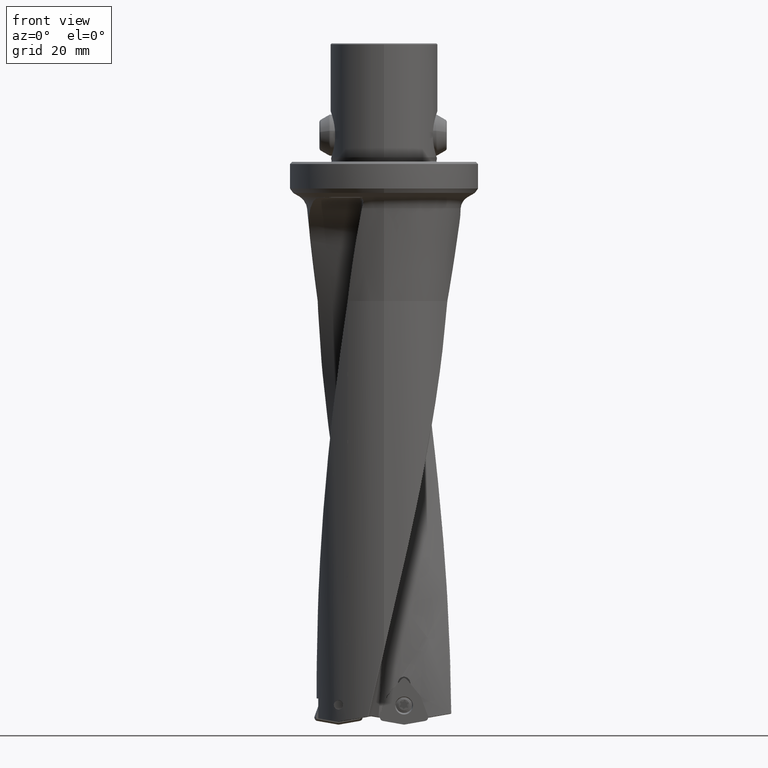
[diagram: clean part render]
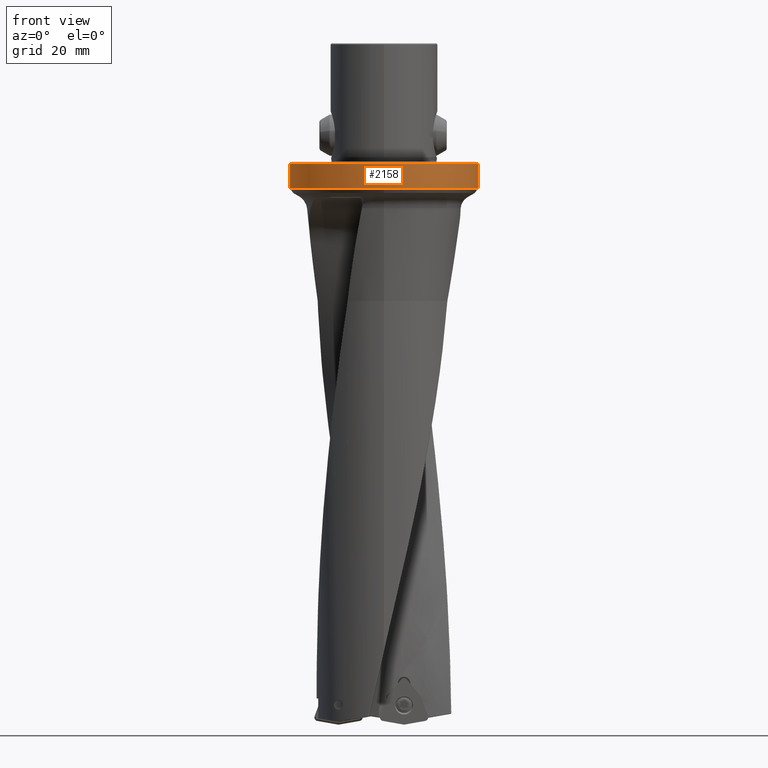
[diagram: same view with one face highlighted and labeled with its STEP entity id]
A machine part, front view. The second image highlights one B-rep face of the part: STEP entity #2158.
In plain terms, the highlighted cylindrical surface (partial cylindrical patch) has radius 31.75 mm, axis along (-0, -0, 1).
Its self-contained STEP definition (entity closure, byte-faithful):
#2158=ADVANCED_FACE('NONE',(#5861),#5862,.T.);
#2224=VERTEX_POINT('NONE',#5932);
#2272=VERTEX_POINT('NONE',#5984);
#2350=EDGE_CURVE('NONE',#5270,#2224,#6067,.T.);
#2898=EDGE_CURVE('NONE',#2224,#2272,#6681,.T.);
#3060=EDGE_CURVE('NONE',#4236,#2272,#6854,.T.);
#3288=EDGE_CURVE('NONE',#4340,#4236,#7118,.T.);
#4236=VERTEX_POINT('NONE',#8166);
#4268=EDGE_CURVE('NONE',#4340,#5270,#8199,.F.);
#4340=VERTEX_POINT('NONE',#8281);
#5270=VERTEX_POINT('NONE',#9308);
#5861=FACE_OUTER_BOUND('',#11666,.T.);
#5862=CYLINDRICAL_SURFACE('',#11667,31.75);
#5932=CARTESIAN_POINT('',(31.75,-7.56050156833742E-014,-8.99999999999998));
#5984=CARTESIAN_POINT('',(31.75,-7.17168905099881E-014,-0.749999999999964));
#6067=CIRCLE('',#12384,31.75);
#6681=LINE('',#19923,#19924);
#6854=CIRCLE('',#23533,31.75);
#7118=LINE('',#25395,#25396);
#8166=CARTESIAN_POINT('',(-31.75,7.56050156833742E-014,-0.749999999999964));
#8199=CIRCLE('',#35715,31.75);
#8281=CARTESIAN_POINT('',(-31.75,7.94931408567602E-014,-8.99999999999998));
#9308=CARTESIAN_POINT('',(-3.88812517338605E-015,-31.75,-8.99999999999998));
#11666=EDGE_LOOP('',(#46463,#46464,#46465,#46466,#46467));
#11667=AXIS2_PLACEMENT_3D('',#46468,#46469,#46470);
#12384=AXIS2_PLACEMENT_3D('',#46647,#46648,#46649);
#19923=CARTESIAN_POINT('',(31.75,-7.56050156833742E-014,40.0));
#19924=VECTOR('',#47423,1000.0);
#23533=AXIS2_PLACEMENT_3D('',#47589,#47590,#47591);
#25395=CARTESIAN_POINT('',(-31.75,7.94931408567602E-014,40.0));
#25396=VECTOR('',#47983,1000.0);
#35715=AXIS2_PLACEMENT_3D('',#49159,#49160,#49161);
#46463=ORIENTED_EDGE('',*,*,#3288,.F.);
#46464=ORIENTED_EDGE('',*,*,#4268,.T.);
#46465=ORIENTED_EDGE('',*,*,#2350,.T.);
#46466=ORIENTED_EDGE('',*,*,#2898,.T.);
#46467=ORIENTED_EDGE('',*,*,#3060,.F.);
#46468=CARTESIAN_POINT('',(0.0,0.0,40.0));
#46469=DIRECTION('',(-0.0,-0.0,1.0));
#46470=DIRECTION('',(1.0,-2.38126033648423E-015,0.0));
#46647=CARTESIAN_POINT('',(0.0,0.0,-8.99999999999998));
#46648=DIRECTION('',(0.0,-0.0,1.0));
#46649=DIRECTION('',(1.0,-2.38126033648423E-015,-0.0));
#47423=DIRECTION('',(0.0,0.0,1.0));
#47589=CARTESIAN_POINT('',(0.0,0.0,-0.749999999999964));
#47590=DIRECTION('',(0.0,-0.0,1.0));
#47591=DIRECTION('',(1.0,-2.38126033648423E-015,-0.0));
#47983=DIRECTION('',(0.0,0.0,1.0));
#49159=CARTESIAN_POINT('',(0.0,0.0,-8.99999999999998));
#49160=DIRECTION('',(0.0,0.0,-1.0));
#49161=DIRECTION('',(1.0,-2.38126033648423E-015,0.0));